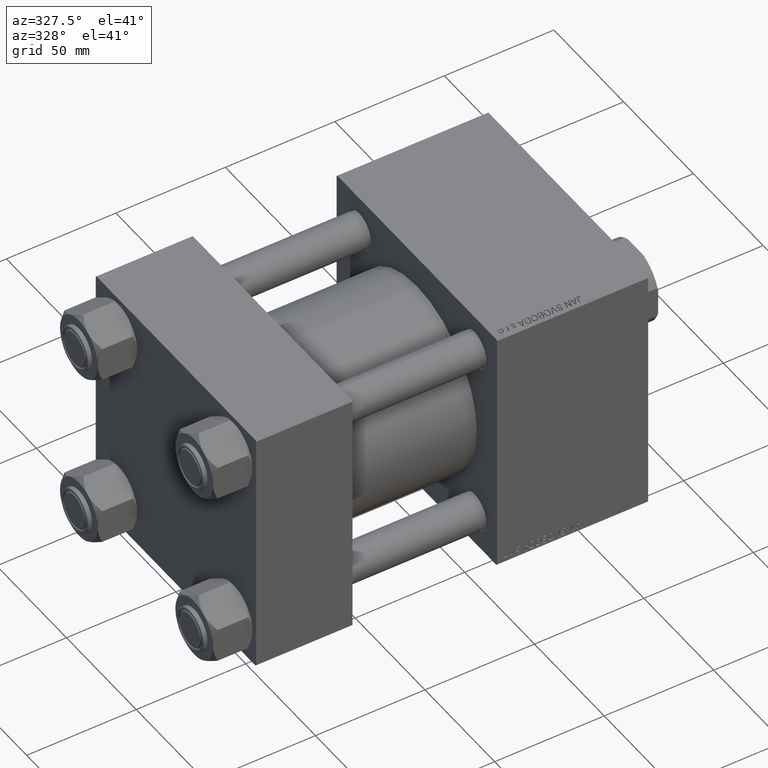
[diagram: clean part render]
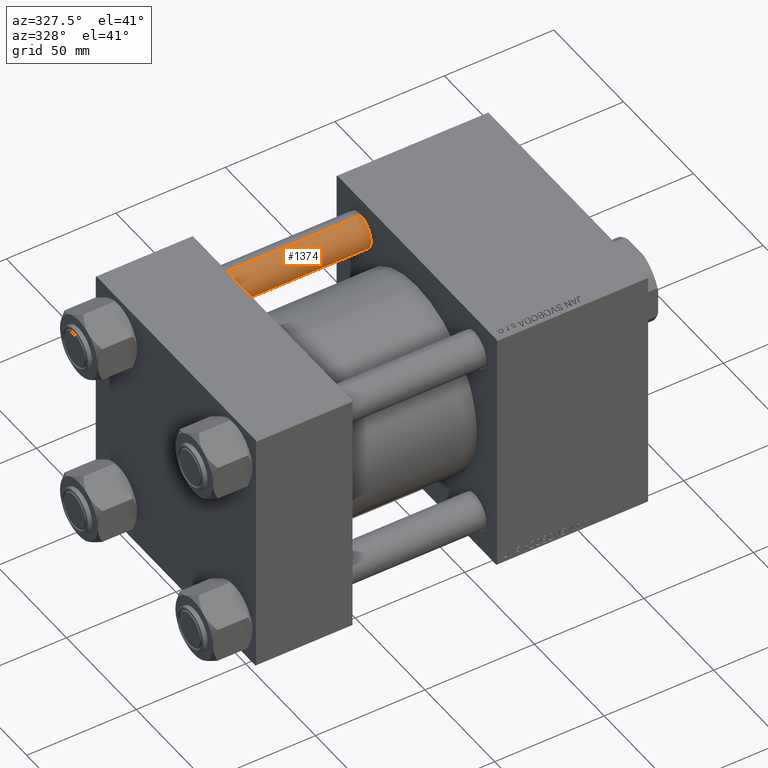
[diagram: same view with one face highlighted and labeled with its STEP entity id]
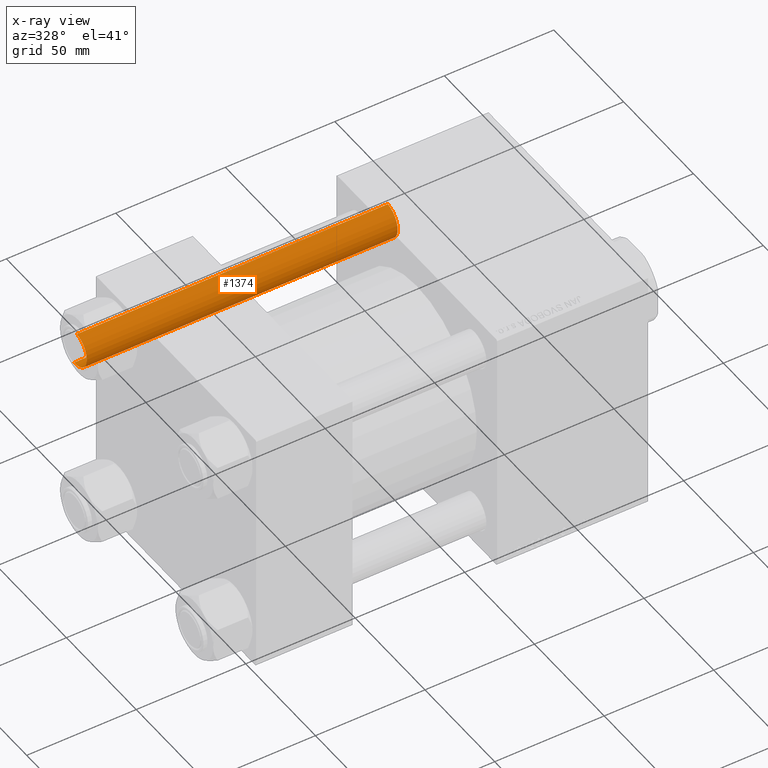
[diagram: x-ray of the same camera — body ghosted, the highlighted face saturated]
A machine part, auxiliary view. The second image highlights one B-rep face of the part: STEP entity #1374.
The next image is the same camera in x-ray: the body ghosted, the highlighted face saturated — about 0% of this face is hidden behind the body in this view.
In plain terms, the highlighted cylindrical surface (edge-blend (fillet) strip) has radius 8 mm, axis along (-1, 0, 0).
Its self-contained STEP definition (entity closure, byte-faithful):
#1374 = ADVANCED_FACE ( 'NONE', ( #43479 ), #4798, .T. ) ;
#3435 = VERTEX_POINT ( 'NONE', #28033 ) ;
#4798 = CYLINDRICAL_SURFACE ( 'NONE', #23622, 8.000000000000000000 ) ;
#5722 = CARTESIAN_POINT ( 'NONE',  ( 0.000000000000000000, 0.000000000000000000, 142.4999999999999716 ) ) ;
#5942 = DIRECTION ( 'NONE',  ( -0.000000000000000000, -0.000000000000000000, -1.000000000000000000 ) ) ;
#6107 = LINE ( 'NONE', #14318, #50529 ) ;
#7012 = VERTEX_POINT ( 'NONE', #39935 ) ;
#8632 = CARTESIAN_POINT ( 'NONE',  ( 0.000000000000000000, 0.000000000000000000, 143.0000000000000000 ) ) ;
#9856 = CARTESIAN_POINT ( 'NONE',  ( -8.000000000000000000, 0.000000000000000000, 0.4999999999999726885 ) ) ;
#10357 = AXIS2_PLACEMENT_3D ( 'NONE', #13475, #10378, #25267 ) ;
#10378 = DIRECTION ( 'NONE',  ( -0.000000000000000000, -0.000000000000000000, 1.000000000000000000 ) ) ;
#12233 = EDGE_LOOP ( 'NONE', ( #15526, #23546, #20618, #14940 ) ) ;
#12305 = EDGE_CURVE ( 'NONE', #3435, #24472, #18266, .T. ) ;
#12831 = CIRCLE ( 'NONE', #10357, 8.000000000000000000 ) ;
#13475 = CARTESIAN_POINT ( 'NONE',  ( 0.000000000000000000, 0.000000000000000000, 0.4999999999999726885 ) ) ;
#14260 = VECTOR ( 'NONE', #5942, 1000.000000000000000 ) ;
#14318 = CARTESIAN_POINT ( 'NONE',  ( 8.000000000000000000, 9.797174393178825657E-16, 143.0000000000000000 ) ) ;
#14940 = ORIENTED_EDGE ( 'NONE', *, *, #19481, .T. ) ;
#15430 = AXIS2_PLACEMENT_3D ( 'NONE', #5722, #21621, #34151 ) ;
#15526 = ORIENTED_EDGE ( 'NONE', *, *, #25919, .F. ) ;
#18266 = LINE ( 'NONE', #41037, #14260 ) ;
#19481 = EDGE_CURVE ( 'NONE', #24472, #7012, #12831, .T. ) ;
#20618 = ORIENTED_EDGE ( 'NONE', *, *, #12305, .T. ) ;
#20698 = DIRECTION ( 'NONE',  ( -1.000000000000000000, 0.000000000000000000, 0.000000000000000000 ) ) ;
#21621 = DIRECTION ( 'NONE',  ( 0.000000000000000000, 0.000000000000000000, -1.000000000000000000 ) ) ;
#21971 = CIRCLE ( 'NONE', #15430, 8.000000000000000000 ) ;
#23546 = ORIENTED_EDGE ( 'NONE', *, *, #38994, .T. ) ;
#23622 = AXIS2_PLACEMENT_3D ( 'NONE', #8632, #36539, #20698 ) ;
#24472 = VERTEX_POINT ( 'NONE', #9856 ) ;
#25267 = DIRECTION ( 'NONE',  ( 1.000000000000000000, 0.000000000000000000, 0.000000000000000000 ) ) ;
#25919 = EDGE_CURVE ( 'NONE', #47162, #7012, #6107, .T. ) ;
#28033 = CARTESIAN_POINT ( 'NONE',  ( -8.000000000000000000, 0.000000000000000000, 142.4999999999999716 ) ) ;
#29653 = CARTESIAN_POINT ( 'NONE',  ( 8.000000000000000000, 9.797174393178825657E-16, 142.4999999999999716 ) ) ;
#34151 = DIRECTION ( 'NONE',  ( 1.000000000000000000, 0.000000000000000000, 0.000000000000000000 ) ) ;
#36539 = DIRECTION ( 'NONE',  ( -0.000000000000000000, -0.000000000000000000, -1.000000000000000000 ) ) ;
#38994 = EDGE_CURVE ( 'NONE', #47162, #3435, #21971, .T. ) ;
#39935 = CARTESIAN_POINT ( 'NONE',  ( 8.000000000000000000, 9.797174393178825657E-16, 0.4999999999999726885 ) ) ;
#40692 = DIRECTION ( 'NONE',  ( -0.000000000000000000, -0.000000000000000000, -1.000000000000000000 ) ) ;
#41037 = CARTESIAN_POINT ( 'NONE',  ( -8.000000000000000000, 0.000000000000000000, 143.0000000000000000 ) ) ;
#43479 = FACE_OUTER_BOUND ( 'NONE', #12233, .T. ) ;
#47162 = VERTEX_POINT ( 'NONE', #29653 ) ;
#50529 = VECTOR ( 'NONE', #40692, 1000.000000000000000 ) ;